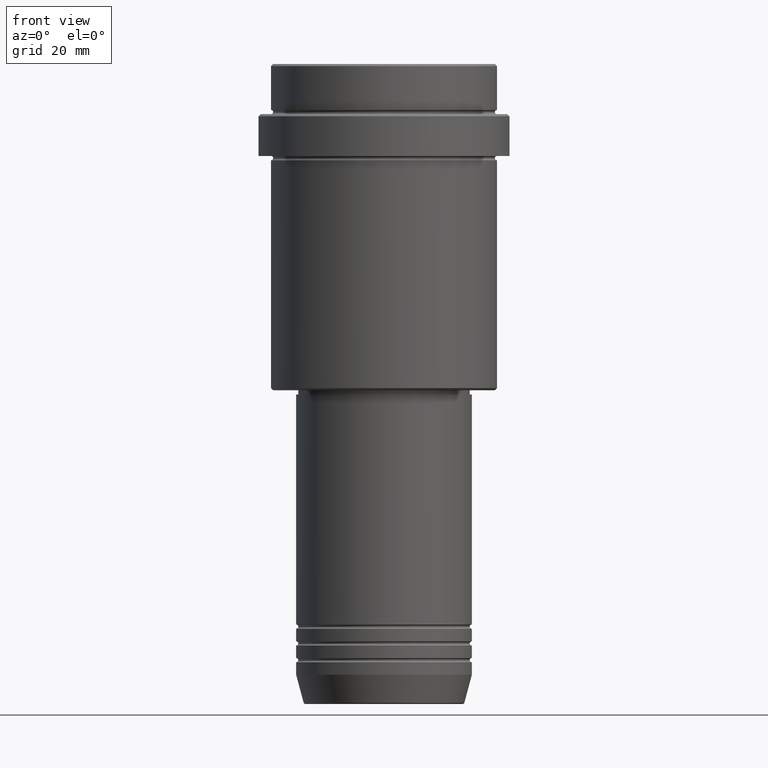
[diagram: clean part render]
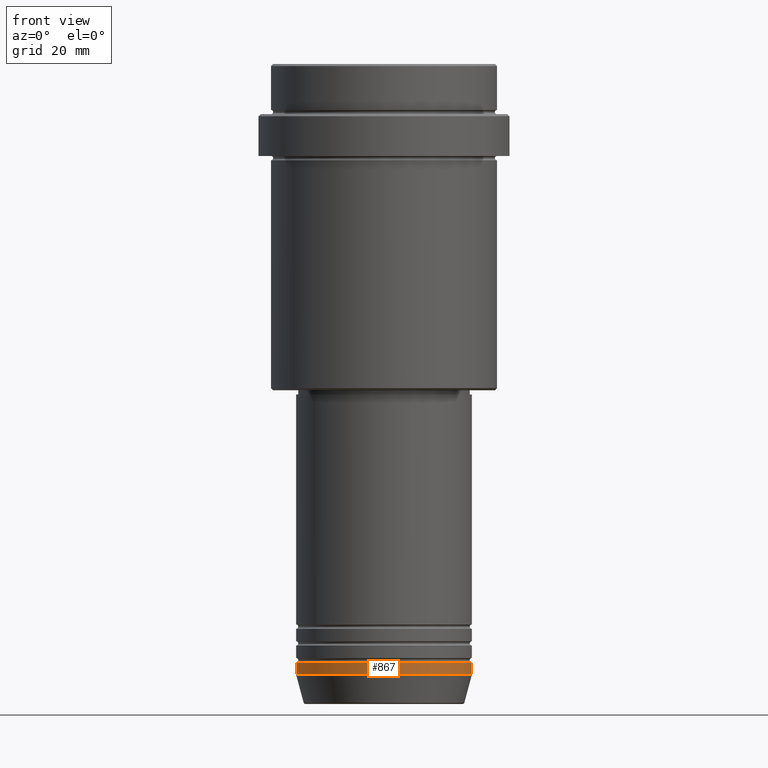
[diagram: same view with one face highlighted and labeled with its STEP entity id]
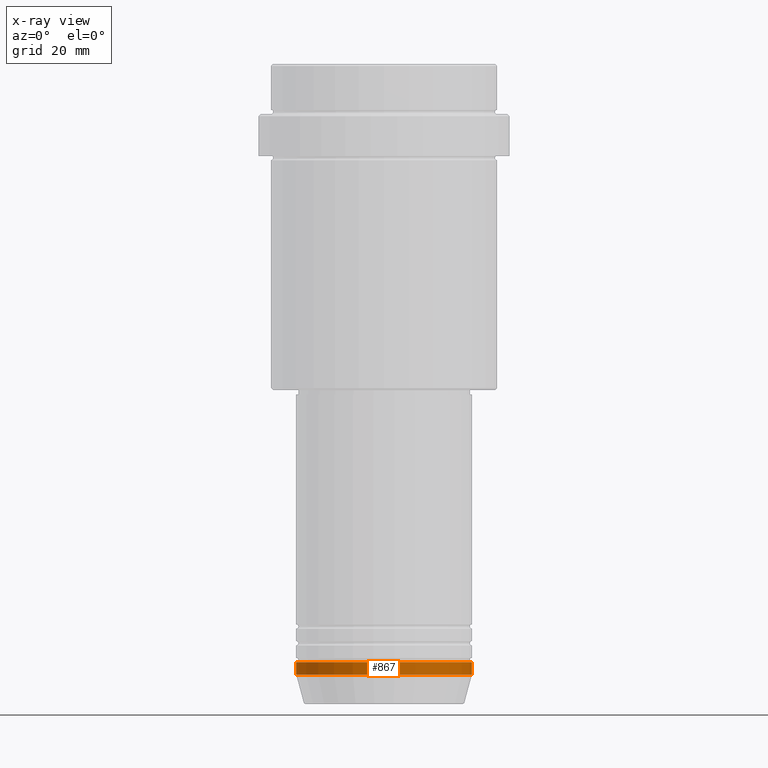
[diagram: x-ray of the same camera — body ghosted, the highlighted face saturated]
A machine part, front view. The second image highlights one B-rep face of the part: STEP entity #867.
The next image is the same camera in x-ray: the body ghosted, the highlighted face saturated — about 0% of this face is hidden behind the body in this view.
In plain terms, the highlighted cylindrical surface (partial cylindrical patch) has radius 21 mm, axis along (-0, -0, 1).
Its self-contained STEP definition (entity closure, byte-faithful):
#31 = VERTEX_POINT ( 'NONE', #288 ) ;
#67 = ORIENTED_EDGE ( 'NONE', *, *, #612, .F. ) ;
#81 = EDGE_CURVE ( 'NONE', #838, #165, #1014, .T. ) ;
#143 = AXIS2_PLACEMENT_3D ( 'NONE', #224, #751, #774 ) ;
#165 = VERTEX_POINT ( 'NONE', #372 ) ;
#171 = DIRECTION ( 'NONE',  ( -0.000000000000000000, -0.000000000000000000, 1.000000000000000000 ) ) ;
#201 = DIRECTION ( 'NONE',  ( -0.000000000000000000, -0.000000000000000000, 1.000000000000000000 ) ) ;
#203 = ORIENTED_EDGE ( 'NONE', *, *, #81, .F. ) ;
#224 = CARTESIAN_POINT ( 'NONE',  ( 0.000000000000000000, 0.000000000000000000, -143.0000000000000000 ) ) ;
#288 = CARTESIAN_POINT ( 'NONE',  ( -21.00000000000000000, 2.571758278209441661E-15, -146.0000000000000000 ) ) ;
#362 = ORIENTED_EDGE ( 'NONE', *, *, #851, .T. ) ;
#372 = CARTESIAN_POINT ( 'NONE',  ( 21.00000000000000000, 0.000000000000000000, -143.0000000000000000 ) ) ;
#386 = CARTESIAN_POINT ( 'NONE',  ( 0.000000000000000000, 0.000000000000000000, -146.0000000000000000 ) ) ;
#441 = EDGE_LOOP ( 'NONE', ( #67, #362, #1355, #203 ) ) ;
#463 = CARTESIAN_POINT ( 'NONE',  ( -21.00000000000000000, 2.571758278209441661E-15, 0.000000000000000000 ) ) ;
#466 = AXIS2_PLACEMENT_3D ( 'NONE', #386, #599, #1037 ) ;
#485 = VECTOR ( 'NONE', #201, 1000.000000000000000 ) ;
#550 = VECTOR ( 'NONE', #900, 1000.000000000000000 ) ;
#580 = EDGE_CURVE ( 'NONE', #1076, #165, #1211, .T. ) ;
#589 = CARTESIAN_POINT ( 'NONE',  ( -21.00000000000000000, 2.571758278209441661E-15, -143.0000000000000000 ) ) ;
#599 = DIRECTION ( 'NONE',  ( -0.000000000000000000, -0.000000000000000000, 1.000000000000000000 ) ) ;
#612 = EDGE_CURVE ( 'NONE', #31, #838, #1307, .T. ) ;
#634 = CARTESIAN_POINT ( 'NONE',  ( 21.00000000000000000, 0.000000000000000000, 0.000000000000000000 ) ) ;
#751 = DIRECTION ( 'NONE',  ( -0.000000000000000000, -0.000000000000000000, 1.000000000000000000 ) ) ;
#774 = DIRECTION ( 'NONE',  ( 1.000000000000000000, 0.000000000000000000, 0.000000000000000000 ) ) ;
#813 = FACE_OUTER_BOUND ( 'NONE', #441, .T. ) ;
#838 = VERTEX_POINT ( 'NONE', #589 ) ;
#851 = EDGE_CURVE ( 'NONE', #31, #1076, #1180, .T. ) ;
#867 = ADVANCED_FACE ( 'NONE', ( #813 ), #1265, .T. ) ;
#900 = DIRECTION ( 'NONE',  ( -0.000000000000000000, -0.000000000000000000, 1.000000000000000000 ) ) ;
#927 = CARTESIAN_POINT ( 'NONE',  ( 21.00000000000000000, 0.000000000000000000, -146.0000000000000000 ) ) ;
#934 = DIRECTION ( 'NONE',  ( 1.000000000000000000, 0.000000000000000000, 0.000000000000000000 ) ) ;
#996 = AXIS2_PLACEMENT_3D ( 'NONE', #1153, #171, #934 ) ;
#1014 = CIRCLE ( 'NONE', #143, 21.00000000000000000 ) ;
#1037 = DIRECTION ( 'NONE',  ( 1.000000000000000000, 0.000000000000000000, 0.000000000000000000 ) ) ;
#1076 = VERTEX_POINT ( 'NONE', #927 ) ;
#1153 = CARTESIAN_POINT ( 'NONE',  ( 0.000000000000000000, 0.000000000000000000, 0.000000000000000000 ) ) ;
#1180 = CIRCLE ( 'NONE', #466, 21.00000000000000000 ) ;
#1211 = LINE ( 'NONE', #634, #485 ) ;
#1265 = CYLINDRICAL_SURFACE ( 'NONE', #996, 21.00000000000000000 ) ;
#1307 = LINE ( 'NONE', #463, #550 ) ;
#1355 = ORIENTED_EDGE ( 'NONE', *, *, #580, .T. ) ;